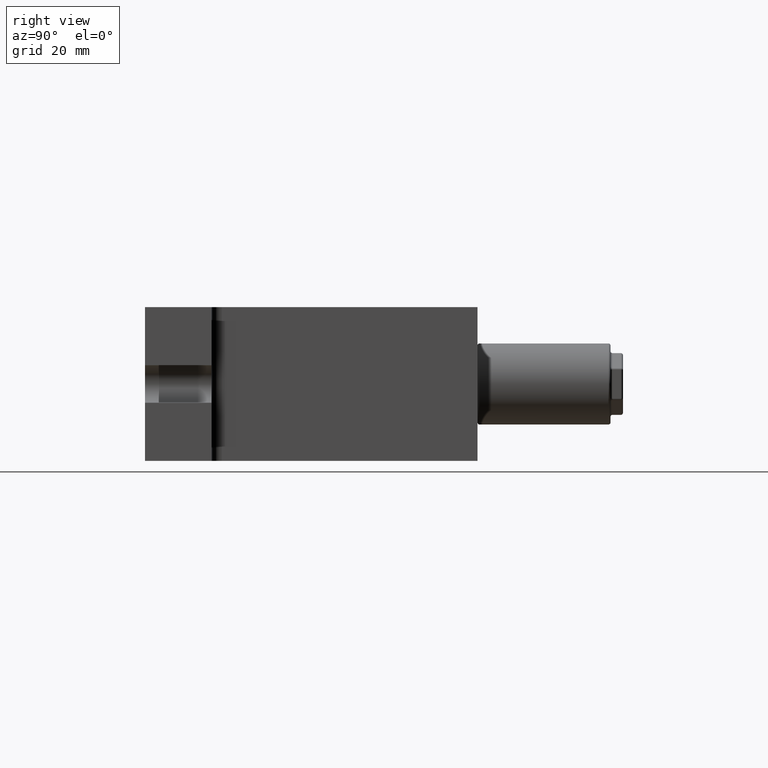
[diagram: clean part render]
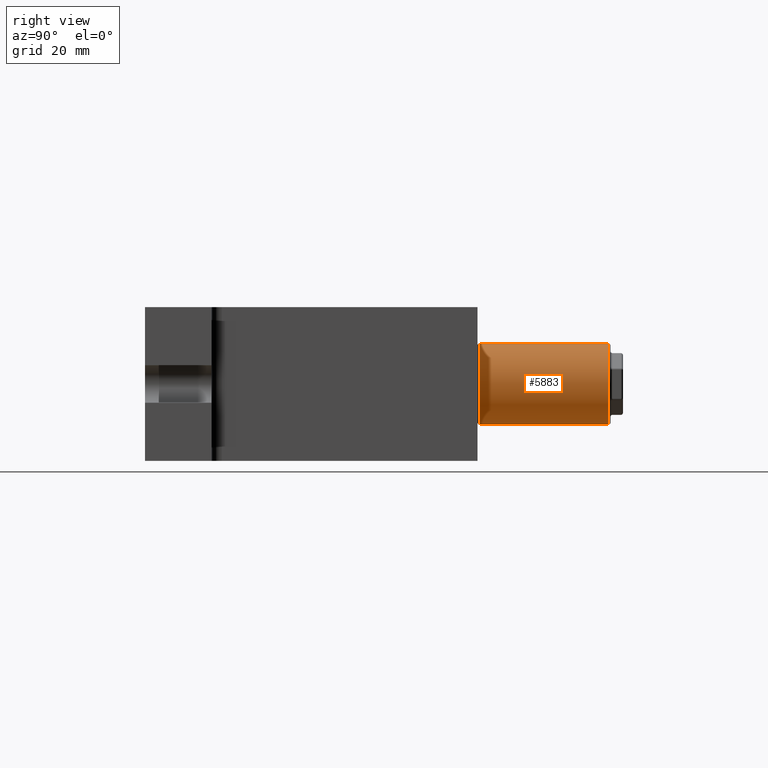
[diagram: same view with one face highlighted and labeled with its STEP entity id]
A machine part, right view. The second image highlights one B-rep face of the part: STEP entity #5883.
In plain terms, the highlighted cylindrical surface (partial cylindrical patch) has radius 9.75 mm, axis along (-0, -1, -0).
Its self-contained STEP definition (entity closure, byte-faithful):
#26 = VERTEX_POINT ( 'NONE', #6502 ) ;
#35 = VECTOR ( 'NONE', #4669, 1000.000000000000000 ) ;
#281 = EDGE_CURVE ( 'NONE', #3010, #6376, #797, .T. ) ;
#445 = ORIENTED_EDGE ( 'NONE', *, *, #6758, .T. ) ;
#471 = DIRECTION ( 'NONE',  ( 0.0000000000000000000, 0.0000000000000000000, -1.000000000000000000 ) ) ;
#561 = CARTESIAN_POINT ( 'NONE',  ( -22.00000000000000000, 72.00000000000000000, 9.749999999999998200 ) ) ;
#599 = CARTESIAN_POINT ( 'NONE',  ( -22.00000000000000000, 40.50000000000000000, -1.480388300893379800E-014 ) ) ;
#650 = DIRECTION ( 'NONE',  ( -5.959270968386779200E-017, -1.000000000000000000, -1.089523766022739900E-016 ) ) ;
#716 = AXIS2_PLACEMENT_3D ( 'NONE', #1627, #1076, #471 ) ;
#725 = ORIENTED_EDGE ( 'NONE', *, *, #6890, .F. ) ;
#772 = VECTOR ( 'NONE', #4150, 1000.000000000000000 ) ;
#797 = LINE ( 'NONE', #1099, #5667 ) ;
#858 = CARTESIAN_POINT ( 'NONE',  ( -22.00000000000000400, 72.00000000000000000, -9.750000000000001800 ) ) ;
#957 = VERTEX_POINT ( 'NONE', #4101 ) ;
#958 = EDGE_CURVE ( 'NONE', #5834, #4589, #4319, .T. ) ;
#962 = EDGE_CURVE ( 'NONE', #2971, #4227, #7016, .T. ) ;
#970 = DIRECTION ( 'NONE',  ( -5.959270968386779200E-017, -1.000000000000000000, -1.089523766022739900E-016 ) ) ;
#1071 = CARTESIAN_POINT ( 'NONE',  ( -22.00000000000000000, 72.00000000000000000, -9.750000000000000000 ) ) ;
#1072 = VECTOR ( 'NONE', #5219, 1000.000000000000000 ) ;
#1076 = DIRECTION ( 'NONE',  ( -5.959270968386779200E-017, -1.000000000000000000, -1.089523766022739900E-016 ) ) ;
#1099 = CARTESIAN_POINT ( 'NONE',  ( -22.00000000000000000, 72.00000000000000000, 9.750000000000000000 ) ) ;
#1108 = EDGE_CURVE ( 'NONE', #26, #3939, #2687, .T. ) ;
#1152 = CARTESIAN_POINT ( 'NONE',  ( -22.00000000000000000, 50.00000000000000000, 9.750000000000000000 ) ) ;
#1157 = DIRECTION ( 'NONE',  ( 5.959270968386779200E-017, 1.000000000000000000, 1.089523766022739900E-016 ) ) ;
#1308 = EDGE_CURVE ( 'NONE', #5278, #6376, #4763, .T. ) ;
#1426 = LINE ( 'NONE', #4592, #2778 ) ;
#1454 = CARTESIAN_POINT ( 'NONE',  ( -22.00000000000000400, 72.00000000000000000, -9.750000000000001800 ) ) ;
#1518 = ORIENTED_EDGE ( 'NONE', *, *, #5425, .F. ) ;
#1627 = CARTESIAN_POINT ( 'NONE',  ( -22.00000000000000000, 71.50000000000000000, -9.260952011193280300E-016 ) ) ;
#1788 = EDGE_CURVE ( 'NONE', #3010, #5506, #1426, .T. ) ;
#1986 = ORIENTED_EDGE ( 'NONE', *, *, #4538, .F. ) ;
#1993 = ORIENTED_EDGE ( 'NONE', *, *, #2932, .T. ) ;
#2042 = VECTOR ( 'NONE', #7294, 1000.000000000000000 ) ;
#2045 = CARTESIAN_POINT ( 'NONE',  ( -22.00000000000000000, 72.00000000000000000, 9.750000000000000000 ) ) ;
#2089 = ORIENTED_EDGE ( 'NONE', *, *, #7177, .F. ) ;
#2095 = CARTESIAN_POINT ( 'NONE',  ( -22.00000000000000000, 64.00000000000000000, -9.750000000000000000 ) ) ;
#2125 = LINE ( 'NONE', #4985, #6898 ) ;
#2319 = VERTEX_POINT ( 'NONE', #5837 ) ;
#2344 = CARTESIAN_POINT ( 'NONE',  ( -22.00000000000000700, 40.50000000000000000, -9.750000000000016000 ) ) ;
#2370 = VERTEX_POINT ( 'NONE', #5211 ) ;
#2412 = LINE ( 'NONE', #858, #2042 ) ;
#2547 = CARTESIAN_POINT ( 'NONE',  ( -22.00000000000000000, 66.00000000000000000, -9.750000000000000000 ) ) ;
#2562 = VERTEX_POINT ( 'NONE', #7236 ) ;
#2602 = DIRECTION ( 'NONE',  ( 0.0000000000000000000, 0.0000000000000000000, 1.000000000000000000 ) ) ;
#2629 = ORIENTED_EDGE ( 'NONE', *, *, #281, .F. ) ;
#2680 = LINE ( 'NONE', #1454, #3943 ) ;
#2687 = CIRCLE ( 'NONE', #716, 9.750000000000000000 ) ;
#2778 = VECTOR ( 'NONE', #6292, 1000.000000000000000 ) ;
#2916 = ORIENTED_EDGE ( 'NONE', *, *, #1788, .T. ) ;
#2932 = EDGE_CURVE ( 'NONE', #7054, #7399, #6261, .T. ) ;
#2960 = CARTESIAN_POINT ( 'NONE',  ( -22.00000000000000000, 72.00000000000000000, 9.750000000000000000 ) ) ;
#2966 = CARTESIAN_POINT ( 'NONE',  ( -22.00000000000000000, 72.00000000000000000, -9.750000000000000000 ) ) ;
#2971 = VERTEX_POINT ( 'NONE', #5247 ) ;
#2996 = CARTESIAN_POINT ( 'NONE',  ( -22.00000000000000000, 40.50000000000000000, 9.749999999999984000 ) ) ;
#3010 = VERTEX_POINT ( 'NONE', #5868 ) ;
#3037 = EDGE_LOOP ( 'NONE', ( #1518, #3638, #3963, #725, #6270, #2629, #2916, #445, #1993, #4362, #7001, #7078, #1986, #2089, #5567, #6860 ) ) ;
#3439 = DIRECTION ( 'NONE',  ( 0.0000000000000000000, 0.0000000000000000000, -1.000000000000000000 ) ) ;
#3635 = DIRECTION ( 'NONE',  ( -5.959270968386779200E-017, -1.000000000000000000, -1.089523766022739900E-016 ) ) ;
#3638 = ORIENTED_EDGE ( 'NONE', *, *, #1108, .T. ) ;
#3768 = DIRECTION ( 'NONE',  ( 5.959270968386779200E-017, 1.000000000000000000, 1.089523766022739900E-016 ) ) ;
#3777 = CARTESIAN_POINT ( 'NONE',  ( -22.00000000000000000, 64.00000000000000000, 9.750000000000000000 ) ) ;
#3846 = LINE ( 'NONE', #1071, #772 ) ;
#3851 = EDGE_CURVE ( 'NONE', #2971, #2562, #3917, .T. ) ;
#3868 = CARTESIAN_POINT ( 'NONE',  ( -22.00000000000000000, 72.00000000000000000, -9.260952011193280300E-016 ) ) ;
#3897 = AXIS2_PLACEMENT_3D ( 'NONE', #3868, #6142, #2602 ) ;
#3917 = LINE ( 'NONE', #2966, #35 ) ;
#3939 = VERTEX_POINT ( 'NONE', #4277 ) ;
#3943 = VECTOR ( 'NONE', #970, 1000.000000000000000 ) ;
#3963 = ORIENTED_EDGE ( 'NONE', *, *, #5397, .T. ) ;
#3997 = CARTESIAN_POINT ( 'NONE',  ( -22.00000000000000400, 72.00000000000000000, -9.750000000000001800 ) ) ;
#4079 = DIRECTION ( 'NONE',  ( -5.959270968386779200E-017, -1.000000000000000000, -1.089523766022739900E-016 ) ) ;
#4101 = CARTESIAN_POINT ( 'NONE',  ( -22.00000000000000000, 58.00000000000000000, -9.750000000000000000 ) ) ;
#4150 = DIRECTION ( 'NONE',  ( -5.959270968386779200E-017, -1.000000000000000000, -1.089523766022739900E-016 ) ) ;
#4206 = VECTOR ( 'NONE', #5620, 1000.000000000000000 ) ;
#4227 = VERTEX_POINT ( 'NONE', #2344 ) ;
#4277 = CARTESIAN_POINT ( 'NONE',  ( -22.00000000000000000, 71.50000000000000000, 9.749999999999998200 ) ) ;
#4319 = LINE ( 'NONE', #7455, #1072 ) ;
#4362 = ORIENTED_EDGE ( 'NONE', *, *, #7318, .T. ) ;
#4398 = FACE_OUTER_BOUND ( 'NONE', #3037, .T. ) ;
#4538 = EDGE_CURVE ( 'NONE', #2370, #2562, #2680, .T. ) ;
#4589 = VERTEX_POINT ( 'NONE', #2095 ) ;
#4591 = EDGE_CURVE ( 'NONE', #4589, #957, #2412, .T. ) ;
#4592 = CARTESIAN_POINT ( 'NONE',  ( -22.00000000000000000, 72.00000000000000000, 9.749999999999998200 ) ) ;
#4669 = DIRECTION ( 'NONE',  ( 5.959270968386779200E-017, 1.000000000000000000, 1.089523766022739900E-016 ) ) ;
#4763 = LINE ( 'NONE', #7046, #5824 ) ;
#4985 = CARTESIAN_POINT ( 'NONE',  ( -22.00000000000000000, 72.00000000000000000, 9.749999999999998200 ) ) ;
#4991 = CYLINDRICAL_SURFACE ( 'NONE', #3897, 9.750000000000000000 ) ;
#5033 = CARTESIAN_POINT ( 'NONE',  ( -22.00000000000000000, 48.00000000000000000, 9.750000000000000000 ) ) ;
#5038 = DIRECTION ( 'NONE',  ( -5.959270968386779200E-017, -1.000000000000000000, -1.089523766022739900E-016 ) ) ;
#5089 = LINE ( 'NONE', #2045, #5815 ) ;
#5211 = CARTESIAN_POINT ( 'NONE',  ( -22.00000000000000000, 56.00000000000000000, -9.750000000000000000 ) ) ;
#5219 = DIRECTION ( 'NONE',  ( -5.959270968386779200E-017, -1.000000000000000000, -1.089523766022739900E-016 ) ) ;
#5247 = CARTESIAN_POINT ( 'NONE',  ( -22.00000000000000000, 48.00000000000000000, -9.750000000000000000 ) ) ;
#5270 = CARTESIAN_POINT ( 'NONE',  ( -22.00000000000000000, 58.00000000000000000, 9.750000000000000000 ) ) ;
#5278 = VERTEX_POINT ( 'NONE', #3777 ) ;
#5397 = EDGE_CURVE ( 'NONE', #3939, #2319, #2125, .T. ) ;
#5425 = EDGE_CURVE ( 'NONE', #26, #5834, #6086, .T. ) ;
#5506 = VERTEX_POINT ( 'NONE', #1152 ) ;
#5567 = ORIENTED_EDGE ( 'NONE', *, *, #4591, .F. ) ;
#5620 = DIRECTION ( 'NONE',  ( -5.959270968386779200E-017, -1.000000000000000000, -1.089523766022739900E-016 ) ) ;
#5636 = CIRCLE ( 'NONE', #7108, 9.750000000000000000 ) ;
#5659 = VECTOR ( 'NONE', #650, 1000.000000000000000 ) ;
#5667 = VECTOR ( 'NONE', #1157, 1000.000000000000000 ) ;
#5815 = VECTOR ( 'NONE', #3768, 1000.000000000000000 ) ;
#5824 = VECTOR ( 'NONE', #6389, 1000.000000000000000 ) ;
#5834 = VERTEX_POINT ( 'NONE', #2547 ) ;
#5837 = CARTESIAN_POINT ( 'NONE',  ( -22.00000000000000000, 66.00000000000000000, 9.750000000000000000 ) ) ;
#5868 = CARTESIAN_POINT ( 'NONE',  ( -22.00000000000000000, 56.00000000000000000, 9.750000000000000000 ) ) ;
#5883 = ADVANCED_FACE ( 'NONE', ( #4398 ), #4991, .T. ) ;
#6086 = LINE ( 'NONE', #6128, #4206 ) ;
#6128 = CARTESIAN_POINT ( 'NONE',  ( -22.00000000000000400, 72.00000000000000000, -9.750000000000001800 ) ) ;
#6142 = DIRECTION ( 'NONE',  ( -5.959270968386779200E-017, -1.000000000000000000, -1.089523766022739900E-016 ) ) ;
#6261 = LINE ( 'NONE', #561, #7074 ) ;
#6270 = ORIENTED_EDGE ( 'NONE', *, *, #1308, .T. ) ;
#6292 = DIRECTION ( 'NONE',  ( -5.959270968386779200E-017, -1.000000000000000000, -1.089523766022739900E-016 ) ) ;
#6376 = VERTEX_POINT ( 'NONE', #5270 ) ;
#6389 = DIRECTION ( 'NONE',  ( -5.959270968386779200E-017, -1.000000000000000000, -1.089523766022739900E-016 ) ) ;
#6453 = LINE ( 'NONE', #2960, #6540 ) ;
#6502 = CARTESIAN_POINT ( 'NONE',  ( -22.00000000000000700, 71.50000000000000000, -9.750000000000001800 ) ) ;
#6540 = VECTOR ( 'NONE', #3635, 1000.000000000000000 ) ;
#6758 = EDGE_CURVE ( 'NONE', #5506, #7054, #6453, .T. ) ;
#6860 = ORIENTED_EDGE ( 'NONE', *, *, #958, .F. ) ;
#6890 = EDGE_CURVE ( 'NONE', #5278, #2319, #5089, .T. ) ;
#6898 = VECTOR ( 'NONE', #5038, 1000.000000000000000 ) ;
#7001 = ORIENTED_EDGE ( 'NONE', *, *, #962, .F. ) ;
#7016 = LINE ( 'NONE', #3997, #5659 ) ;
#7046 = CARTESIAN_POINT ( 'NONE',  ( -22.00000000000000000, 72.00000000000000000, 9.749999999999998200 ) ) ;
#7054 = VERTEX_POINT ( 'NONE', #5033 ) ;
#7074 = VECTOR ( 'NONE', #4079, 1000.000000000000000 ) ;
#7078 = ORIENTED_EDGE ( 'NONE', *, *, #3851, .T. ) ;
#7108 = AXIS2_PLACEMENT_3D ( 'NONE', #599, #7476, #3439 ) ;
#7177 = EDGE_CURVE ( 'NONE', #957, #2370, #3846, .T. ) ;
#7236 = CARTESIAN_POINT ( 'NONE',  ( -22.00000000000000000, 50.00000000000000000, -9.750000000000000000 ) ) ;
#7294 = DIRECTION ( 'NONE',  ( -5.959270968386779200E-017, -1.000000000000000000, -1.089523766022739900E-016 ) ) ;
#7318 = EDGE_CURVE ( 'NONE', #7399, #4227, #5636, .T. ) ;
#7399 = VERTEX_POINT ( 'NONE', #2996 ) ;
#7455 = CARTESIAN_POINT ( 'NONE',  ( -22.00000000000000000, 72.00000000000000000, -9.750000000000000000 ) ) ;
#7476 = DIRECTION ( 'NONE',  ( 5.959270968386779200E-017, 1.000000000000000000, 1.089523766022739900E-016 ) ) ;